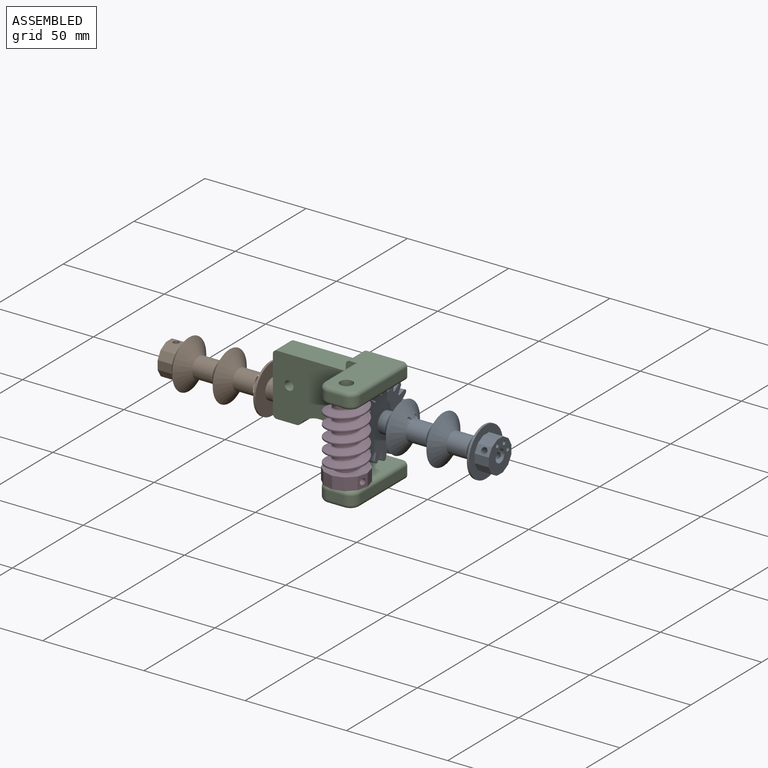
[diagram: assembled view]
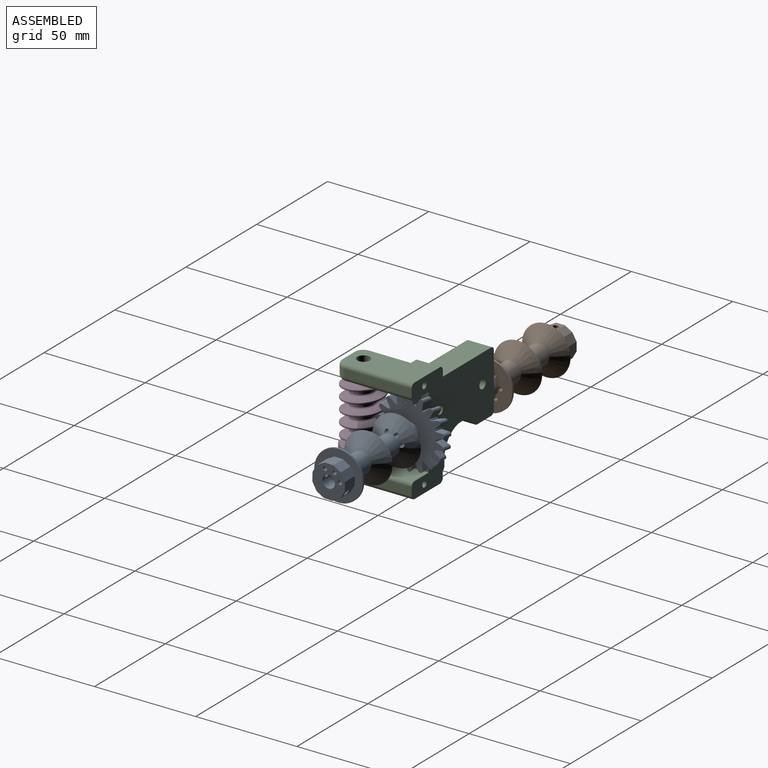
[diagram: assembled view, second angle]
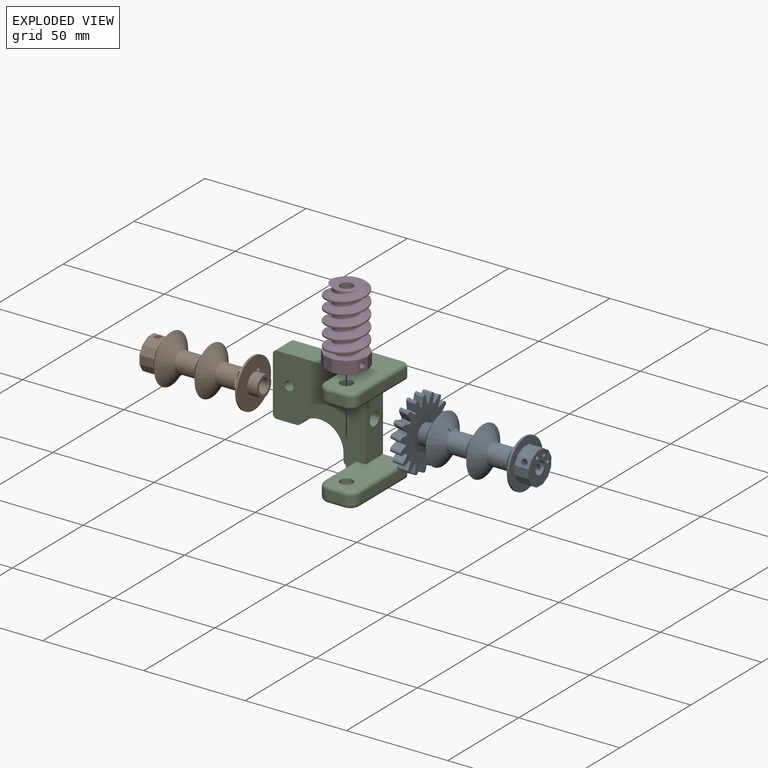
[diagram: exploded view]
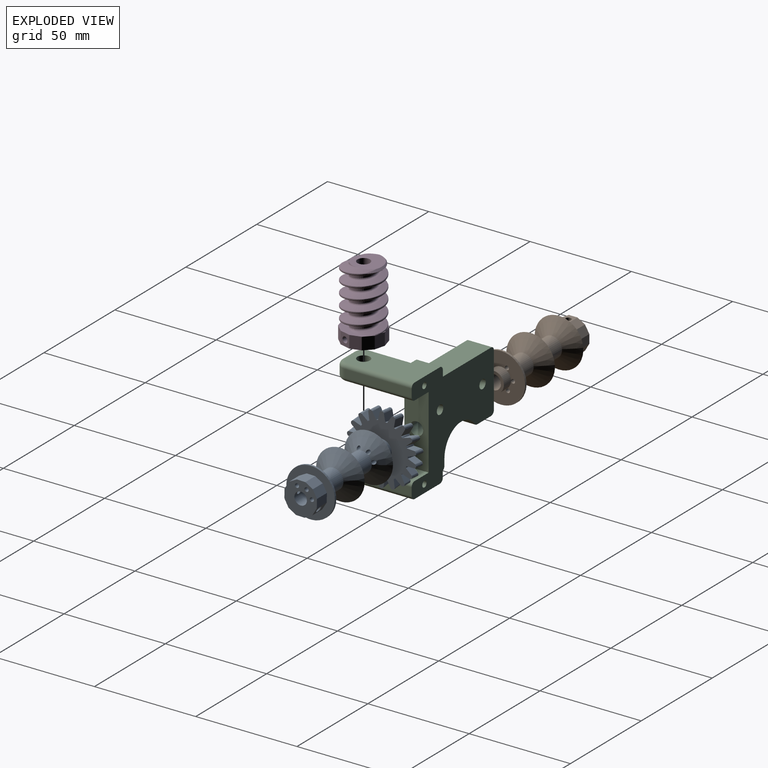
[diagram: exploded view, second angle]
ASSEMBLY  parts=4 mates=3
PART A: 187 faces, bbox 34.6x34.7x62.4 mm
  f0: plane 4.47x0.66mm, normal (0,1,0), area 1.5mm2, adj f2,f6,f11
  f1: plane 5x0.97mm, normal (0,1,0), area 3mm2, adj f2,f3,f7,f138,f140
  f2: plane 34.67x34.33mm, normal (0,0,1), area 655.4mm2, adj f0,f1,f5,f6,f7,f8,f9,f10
  f3: plane 34.67x34.44mm, normal (0,0,-1), area 703.8mm2, adj f1,f4,f5,f6,f7,f8,f9,f11
  f4: plane 0.53x0.08mm, normal (0,-1,0), area 0mm2, adj f3,f6,f11
  f5: plane 5x1.06mm, normal (0,1,0), area 1.6mm2, adj f2,f3,f8,f9
  f6: plane 5x3.78mm, normal (0.97,0.2,0.14), area 19.5mm2, adj f0,f2,f3,f4,f9
  f7: plane 5x3.78mm, normal (-0.97,0.2,-0.14), area 19.5mm2, adj f1,f2,f3,f8
  f8: bspline ~5.77x1.69mm, area 6mm2, adj f2,f3,f5,f7
  f9: bspline ~5.77x1.69mm, area 6mm2, adj f2,f3,f5,f6
  f10: plane 4.47x0.62mm, normal (0.34,0.94,0), area 1.5mm2, adj f2,f14,f19
  f11: plane 5x0.91mm, normal (0.34,0.94,0), area 3mm2, adj f0,f2,f3,f4,f15
  f12: plane 0.53x0.07mm, normal (-0.34,-0.94,0), area 0mm2, adj f3,f14,f19
  f13: plane 5x1mm, normal (0.34,0.94,0), area 1.6mm2, adj f2,f3,f16,f17
  f14: plane 5x4.07mm, normal (0.98,-0.15,0.14), area 19.5mm2, adj f2,f3,f10,f12,f17
  f15: plane 5x3.55mm, normal (-0.84,0.52,-0.14), area 19.5mm2, adj f2,f3,f11,f16
  f16: bspline ~5.77x1.84mm, area 6mm2, adj f2,f3,f13,f15
  f17: bspline ~5.25x1.27mm, area 6mm2, adj f2,f3,f13,f14
  f18: plane 4.47x0.5mm, normal (0.64,0.77,0), area 1.5mm2, adj f2,f22,f27
  f19: plane 5x0.74mm, normal (0.64,0.77,0), area 3mm2, adj f2,f3,f10,f12,f23
  f20: plane 0.53x0.06mm, normal (-0.64,-0.77,0), area 0mm2, adj f3,f22,f27
  f21: plane 5x0.81mm, normal (0.64,0.77,0), area 1.6mm2, adj f2,f3,f24,f25
  f22: plane 5x3.86mm, normal (0.87,-0.47,0.14), area 19.5mm2, adj f2,f3,f18,f20,f25
  f23: plane 5x3.58mm, normal (-0.62,0.77,-0.14), area 19.5mm2, adj f2,f3,f19,f24
  f24: bspline ~5.25x1.7mm, area 6mm2, adj f2,f3,f21,f23
  f25: bspline ~5.25x1.59mm, area 6mm2, adj f2,f3,f21,f22
  f26: plane 4.47x0.57mm, normal (0.87,0.5,0), area 1.5mm2, adj f2,f30,f35
  f27: plane 5x0.84mm, normal (0.87,0.5,0), area 3mm2, adj f2,f3,f18,f20,f31
  f28: plane 0.53x0.07mm, normal (-0.87,-0.5,0), area 0mm2, adj f3,f30,f35
  f29: plane 5x0.92mm, normal (0.87,0.5,0), area 1.6mm2, adj f2,f3,f32,f33
  f30: plane 5x3.26mm, normal (0.65,-0.74,0.14), area 19.5mm2, adj f2,f3,f26,f28,f33
  f31: plane 5x4.03mm, normal (-0.32,0.94,-0.14), area 19.5mm2, adj f2,f3,f27,f32
  f32: bspline ~5.25x1.43mm, area 6mm2, adj f2,f3,f29,f31
  f33: bspline ~5.77x1.82mm, area 6mm2, adj f2,f3,f29,f30
  f34: plane 4.47x0.65mm, normal (0.98,0.17,0), area 1.5mm2, adj f2,f38,f43
  f35: plane 5x0.96mm, normal (0.98,0.17,0), area 3mm2, adj f2,f3,f26,f28,f39
  f36: plane 0.53x0.08mm, normal (-0.98,-0.17,0), area 0mm2, adj f3,f38,f43
  f37: plane 5x1.05mm, normal (0.98,0.17,0), area 1.6mm2, adj f2,f3,f40,f41
  f38: plane 5x3.72mm, normal (0.36,-0.92,0.14), area 19.5mm2, adj f2,f3,f34,f36,f41
  f39: plane 5x3.99mm, normal (0.02,0.99,-0.14), area 19.5mm2, adj f2,f3,f35,f40
  f40: bspline ~5.77x1.54mm, area 6mm2, adj f2,f3,f37,f39
  f41: bspline ~5.77x1.79mm, area 6mm2, adj f2,f3,f37,f38
  f42: plane 4.47x0.65mm, normal (0.98,-0.17,0), area 1.5mm2, adj f2,f46,f51
  f43: plane 5x0.96mm, normal (0.98,-0.17,0), area 3mm2, adj f2,f3,f34,f36,f47
  f44: plane 0.53x0.08mm, normal (-0.98,0.17,0), area 0mm2, adj f3,f46,f51
  f45: plane 5x1.05mm, normal (0.98,-0.17,0), area 1.6mm2, adj f2,f3,f48,f49
  f46: plane 5x3.99mm, normal (0.02,-0.99,0.14), area 19.5mm2, adj f2,f3,f42,f44,f49
  f47: plane 5x3.72mm, normal (0.36,0.92,-0.14), area 19.5mm2, adj f2,f3,f43,f48
  f48: bspline ~5.77x1.79mm, area 6mm2, adj f2,f3,f45,f47
  f49: bspline ~5.77x1.54mm, area 6mm2, adj f2,f3,f45,f46
  f50: plane 4.47x0.57mm, normal (0.87,-0.5,0), area 1.5mm2, adj f2,f54,f59
  f51: plane 5x0.84mm, normal (0.87,-0.5,0), area 3mm2, adj f2,f3,f42,f44,f55
  f52: plane 0.53x0.07mm, normal (-0.87,0.5,0), area 0mm2, adj f3,f54,f59
  f53: plane 5x0.92mm, normal (0.87,-0.5,0), area 1.6mm2, adj f2,f3,f56,f57
  f54: plane 5x4.03mm, normal (-0.32,-0.94,0.14), area 19.5mm2, adj f2,f3,f50,f52,f57
  f55: plane 5x3.26mm, normal (0.65,0.74,-0.14), area 19.5mm2, adj f2,f3,f51,f56
  f56: bspline ~5.77x1.82mm, area 6mm2, adj f2,f3,f53,f55
  f57: bspline ~5.77x1.47mm, area 6mm2, adj f2,f3,f53,f54
  f58: plane 4.47x0.5mm, normal (0.64,-0.77,0), area 1.5mm2, adj f2,f62,f67
  f59: plane 5x0.74mm, normal (0.64,-0.77,0), area 3mm2, adj f2,f3,f50,f52,f63
  f60: plane 0.53x0.06mm, normal (-0.64,0.77,0), area 0mm2, adj f3,f62,f67
  f61: plane 5x0.81mm, normal (0.64,-0.77,0), area 1.6mm2, adj f2,f3,f64,f65
  f62: plane 5x3.58mm, normal (-0.62,-0.77,0.14), area 19.5mm2, adj f2,f3,f58,f60,f65
  f63: plane 5x3.86mm, normal (0.87,0.47,-0.14), area 19.5mm2, adj f2,f3,f59,f64
  f64: bspline ~5.77x1.64mm, area 6mm2, adj f2,f3,f61,f63
  f65: bspline ~5.25x1.7mm, area 6mm2, adj f2,f3,f61,f62
  f66: plane 4.47x0.62mm, normal (0.34,-0.94,0), area 1.5mm2, adj f2,f70,f75
  f67: plane 5x0.91mm, normal (0.34,-0.94,0), area 3mm2, adj f2,f3,f58,f60,f71
  f68: plane 0.53x0.07mm, normal (-0.34,0.94,0), area 0mm2, adj f3,f70,f75
  f69: plane 5x1mm, normal (0.34,-0.94,0), area 1.6mm2, adj f2,f3,f72,f73
  f70: plane 5x3.55mm, normal (-0.84,-0.52,0.14), area 19.5mm2, adj f2,f3,f66,f68,f73
  f71: plane 5x4.07mm, normal (0.98,0.15,-0.14), area 19.5mm2, adj f2,f3,f67,f72
  f72: bspline ~5.25x1.27mm, area 6mm2, adj f2,f3,f69,f71
  f73: bspline ~5.77x1.84mm, area 6mm2, adj f2,f3,f69,f70
  f74: plane 4.47x0.66mm, normal (0,-1,0), area 1.5mm2, adj f2,f78,f83
  f75: plane 5x0.97mm, normal (0,-1,0), area 3mm2, adj f2,f3,f66,f68,f79
  f76: plane 0.53x0.08mm, normal (0,1,0), area 0mm2, adj f3,f78,f83
  f77: plane 5x1.06mm, normal (0,-1,0), area 1.6mm2, adj f2,f3,f80,f81
  f78: plane 5x3.78mm, normal (-0.97,-0.2,0.14), area 19.5mm2, adj f2,f3,f74,f76,f81
  f79: plane 5x3.78mm, normal (0.97,-0.2,-0.14), area 19.5mm2, adj f2,f3,f75,f80
  f80: bspline ~5.77x1.69mm, area 6mm2, adj f2,f3,f77,f79
  f81: bspline ~5.77x1.69mm, area 6mm2, adj f2,f3,f77,f78
  f82: plane 4.47x0.62mm, normal (-0.34,-0.94,0), area 1.5mm2, adj f2,f86,f91
  f83: plane 5x0.91mm, normal (-0.34,-0.94,0), area 3mm2, adj f2,f3,f74,f76,f87
  f84: plane 0.53x0.07mm, normal (0.34,0.94,0), area 0mm2, adj f3,f86,f91
  f85: plane 5x1mm, normal (-0.34,-0.94,0), area 1.6mm2, adj f2,f3,f88,f89
  f86: plane 5x4.07mm, normal (-0.98,0.15,0.14), area 19.5mm2, adj f2,f3,f82,f84,f89
  f87: plane 5x3.55mm, normal (0.84,-0.52,-0.14), area 19.5mm2, adj f2,f3,f83,f88
  f88: bspline ~5.77x1.84mm, area 6mm2, adj f2,f3,f85,f87
  f89: bspline ~5.25x1.27mm, area 6mm2, adj f2,f3,f85,f86
  f90: plane 4.47x0.5mm, normal (-0.64,-0.77,0), area 1.5mm2, adj f2,f94,f99
  f91: plane 5x0.74mm, normal (-0.64,-0.77,0), area 3mm2, adj f2,f3,f82,f84,f95
  f92: plane 0.53x0.06mm, normal (0.64,0.77,0), area 0mm2, adj f3,f94,f99
  f93: plane 5x0.81mm, normal (-0.64,-0.77,0), area 1.6mm2, adj f2,f3,f96,f97
  f94: plane 5x3.86mm, normal (-0.87,0.47,0.14), area 19.5mm2, adj f2,f3,f90,f92,f97
  f95: plane 5x3.58mm, normal (0.62,-0.77,-0.14), area 19.5mm2, adj f2,f3,f91,f96
  f96: bspline ~5.25x1.7mm, area 6mm2, adj f2,f3,f93,f95
  f97: bspline ~5.25x1.59mm, area 6mm2, adj f2,f3,f93,f94
  f98: plane 4.47x0.57mm, normal (-0.87,-0.5,0), area 1.5mm2, adj f2,f102,f107
  f99: plane 5x0.84mm, normal (-0.87,-0.5,0), area 3mm2, adj f2,f3,f90,f92,f103
  f100: plane 0.53x0.07mm, normal (0.87,0.5,0), area 0mm2, adj f3,f102,f107
  f101: plane 5x0.92mm, normal (-0.87,-0.5,0), area 1.6mm2, adj f2,f3,f104,f105
  f102: plane 5x3.26mm, normal (-0.65,0.74,0.14), area 19.5mm2, adj f2,f3,f98,f100,f105
  f103: plane 5x4.03mm, normal (0.32,-0.94,-0.14), area 19.5mm2, adj f2,f3,f99,f104
  f104: bspline ~5.25x1.43mm, area 6mm2, adj f2,f3,f101,f103
  f105: bspline ~5.77x1.82mm, area 6mm2, adj f2,f3,f101,f102
  f106: plane 4.47x0.65mm, normal (-0.98,-0.17,0), area 1.5mm2, adj f2,f110,f115
  f107: plane 5x0.96mm, normal (-0.98,-0.17,0), area 3mm2, adj f2,f3,f98,f100,f111
  f108: plane 0.53x0.08mm, normal (0.98,0.17,0), area 0mm2, adj f3,f110,f115
  f109: plane 5x1.05mm, normal (-0.98,-0.17,0), area 1.6mm2, adj f2,f3,f112,f113
  f110: plane 5x3.72mm, normal (-0.36,0.92,0.14), area 19.5mm2, adj f2,f3,f106,f108,f113
  f111: plane 5x3.99mm, normal (-0.02,-0.99,-0.14), area 19.5mm2, adj f2,f3,f107,f112
  f112: bspline ~5.77x1.54mm, area 6mm2, adj f2,f3,f109,f111
  f113: bspline ~5.77x1.79mm, area 6mm2, adj f2,f3,f109,f110
  f114: plane 4.47x0.65mm, normal (-0.98,0.17,0), area 1.5mm2, adj f2,f118,f123
  f115: plane 5x0.96mm, normal (-0.98,0.17,0), area 3mm2, adj f2,f3,f106,f108,f119
  f116: plane 0.53x0.08mm, normal (0.98,-0.17,0), area 0mm2, adj f3,f118,f123
  f117: plane 5x1.05mm, normal (-0.98,0.17,0), area 1.6mm2, adj f2,f3,f120,f121
  f118: plane 5x3.99mm, normal (-0.02,0.99,0.14), area 19.5mm2, adj f2,f3,f114,f116,f121
  f119: plane 5x3.72mm, normal (-0.36,-0.92,-0.14), area 19.5mm2, adj f2,f3,f115,f120
  f120: bspline ~5.77x1.79mm, area 6mm2, adj f2,f3,f117,f119
  f121: bspline ~5.77x1.54mm, area 6mm2, adj f2,f3,f117,f118
  f122: plane 4.47x0.57mm, normal (-0.87,0.5,0), area 1.5mm2, adj f2,f126,f131
  f123: plane 5x0.84mm, normal (-0.87,0.5,0), area 3mm2, adj f2,f3,f114,f116,f127
  f124: plane 0.53x0.07mm, normal (0.87,-0.5,0), area 0mm2, adj f3,f126,f131
  f125: plane 5x0.92mm, normal (-0.87,0.5,0), area 1.6mm2, adj f2,f3,f128,f129
  f126: plane 5x4.03mm, normal (0.32,0.94,0.14), area 19.5mm2, adj f2,f3,f122,f124,f129
  f127: plane 5x3.26mm, normal (-0.65,-0.74,-0.14), area 19.5mm2, adj f2,f3,f123,f128
  f128: bspline ~5.77x1.82mm, area 6mm2, adj f2,f3,f125,f127
  f129: bspline ~5.77x1.47mm, area 6mm2, adj f2,f3,f125,f126
  f130: plane 4.47x0.5mm, normal (-0.64,0.77,0), area 1.5mm2, adj f2,f134,f139
  f131: plane 5x0.74mm, normal (-0.64,0.77,0), area 3mm2, adj f2,f3,f122,f124,f135
  f132: plane 0.53x0.06mm, normal (0.64,-0.77,0), area 0mm2, adj f3,f134,f139
  f133: plane 5x0.81mm, normal (-0.64,0.77,0), area 1.6mm2, adj f2,f3,f136,f137
  f134: plane 5x3.58mm, normal (0.62,0.77,0.14), area 19.5mm2, adj f2,f3,f130,f132,f137
  f135: plane 5x3.86mm, normal (-0.87,-0.47,-0.14), area 19.5mm2, adj f2,f3,f131,f136
  f136: bspline ~5.77x1.64mm, area 6mm2, adj f2,f3,f133,f135
  f137: bspline ~5.25x1.7mm, area 6mm2, adj f2,f3,f133,f134
  f138: plane 4.47x0.62mm, normal (-0.34,0.94,0), area 1.5mm2, adj f1,f2,f142
  f139: plane 5x0.91mm, normal (-0.34,0.94,0), area 3mm2, adj f2,f3,f130,f132,f143
  f140: plane 0.53x0.07mm, normal (0.34,-0.94,0), area 0mm2, adj f1,f3,f142
  f141: plane 5x1mm, normal (-0.34,0.94,0), area 1.6mm2, adj f2,f3,f144,f145
  f142: plane 5x3.55mm, normal (0.84,0.52,0.14), area 19.5mm2, adj f2,f3,f138,f140,f145
  f143: plane 5x4.07mm, normal (-0.98,-0.15,-0.14), area 19.5mm2, adj f2,f3,f139,f144
  f144: bspline ~5.25x1.27mm, area 6mm2, adj f2,f3,f141,f143
  f145: bspline ~5.77x1.84mm, area 6mm2, adj f2,f3,f141,f142
  f146: cylinder r=3.1mm len=62mm, axis (0,0,1), area 1193mm2, adj f3,f169,f170,f171
  f147: cylinder r=5mm len=10mm, axis (0,0,-1), area 125.7mm2, adj f2,f148,f180,f183,f186
  f148: cone r=12mm half-angle=54.5deg, axis (0,0,1), area 449.4mm2, adj f147,f149,f179,f182,f185
  f149: cone r=5mm half-angle=54.5deg, axis (0,0,-1), area 449.4mm2, adj f148,f150,f179,f182,f185
  f150: cylinder r=5mm len=10mm, axis (0,0,-1), area 314.2mm2, adj f149,f151,f178,f181,f184
  f151: cone r=12mm half-angle=54.5deg, axis (0,0,1), area 459.4mm2, adj f150,f152
  f152: cone r=5mm half-angle=54.5deg, axis (0,0,-1), area 459.4mm2, adj f151,f153
  f153: cylinder r=5mm len=10mm, axis (0,0,-1), area 314.2mm2, adj f152,f156,f173,f175,f177
  f154: cylinder r=12mm len=24mm, axis (0,0,-1), area 75.4mm2, adj f155,f156
  f155: plane 24x24mm, normal (0,0,1), area 246.6mm2, adj f154,f157,f158,f159,f160,f161,f162,f163
  f156: cone r=12mm half-angle=54.5deg, axis (0,0,1), area 449.4mm2, adj f153,f154,f172,f174,f176
  f157: plane 7x3.71mm, normal (-0.5,-0.87,0), area 30mm2, adj f155,f158,f168,f169
  f158: plane 7x4.29mm, normal (0,-1,0), area 22.9mm2, adj f155,f157,f159,f169,f171
  f159: plane 7x3.71mm, normal (0.5,-0.87,0), area 30mm2, adj f155,f158,f160,f169
  f160: plane 7x3.71mm, normal (0.87,-0.5,0), area 30mm2, adj f155,f159,f161,f169
  f161: plane 7x4.29mm, normal (1,0,0), area 30mm2, adj f155,f160,f162,f169
  f162: plane 7x3.71mm, normal (0.87,0.5,0), area 30mm2, adj f155,f161,f163,f169
  f163: plane 7x3.71mm, normal (0.5,0.87,0), area 30mm2, adj f155,f162,f164,f169
  f164: plane 7x4.29mm, normal (0,1,0), area 22.9mm2, adj f155,f163,f165,f169,f170
  f165: plane 7x3.71mm, normal (-0.5,0.87,0), area 30mm2, adj f155,f164,f166,f169
  f166: plane 7x3.71mm, normal (-0.87,0.5,0), area 30mm2, adj f155,f165,f167,f169
  f167: plane 7x4.29mm, normal (-1,0,0), area 30mm2, adj f155,f166,f168,f169
  f168: plane 7x3.71mm, normal (-0.87,-0.5,0), area 30mm2, adj f155,f157,f167,f169
  f169: plane 16x16mm, normal (0,0,1), area 166.2mm2, adj f146,f157,f158,f159,f160,f161,f162,f163
  f170: cylinder r=1.5mm len=4.9mm, axis (0,-1,0), area 46.2mm2, adj f146,f164
  f171: cylinder r=1.5mm len=4.9mm, axis (0,-1,0), area 46.2mm2, adj f146,f158
  f172: cylinder r=1mm len=13mm, axis (0,0,1), area 78.5mm2, adj f156,f169,f173
  f173: plane 1.16x0.98mm, normal (0,0,1), area 0.4mm2, adj f153,f172
  f174: cylinder r=1mm len=13mm, axis (0,0,1), area 78.5mm2, adj f156,f169,f175
  f175: plane 1.51x0.4mm, normal (0,0,1), area 0.4mm2, adj f153,f174
  f176: cylinder r=1mm len=13mm, axis (0,0,1), area 78.5mm2, adj f156,f169,f177
  f177: plane 1.13x1.01mm, normal (0,0,1), area 0.4mm2, adj f153,f176
  f178: plane 1.16x0.98mm, normal (0,0,-1), area 0.4mm2, adj f150,f179
  f179: cylinder r=1mm len=10mm, axis (0,0,1), area 56.4mm2, adj f148,f149,f178,f180
  f180: plane 1.16x0.98mm, normal (0,0,1), area 0.4mm2, adj f147,f179
  f181: plane 1.51x0.4mm, normal (0,0,-1), area 0.4mm2, adj f150,f182
  f182: cylinder r=1mm len=10mm, axis (0,0,1), area 57.9mm2, adj f148,f149,f181,f183
  f183: plane 1.51x0.4mm, normal (0,0,1), area 0.4mm2, adj f147,f182
  f184: plane 1.13x1.01mm, normal (0,0,-1), area 0.4mm2, adj f150,f185
  f185: cylinder r=1mm len=10mm, axis (0,0,1), area 56.4mm2, adj f148,f149,f184,f186
  f186: plane 1.13x1.01mm, normal (0,0,1), area 0.4mm2, adj f147,f185
PART B: 38 faces, bbox 24x24x56 mm
  f0: cylinder r=3.1mm len=55mm, axis (0,0,-1), area 1056.7mm2, adj f6,f25,f26,f37
  f1: cylinder r=12mm len=24mm, axis (0,0,-1), area 75.4mm2, adj f2,f3
  f2: plane 24x24mm, normal (0,0,-1), area 364.4mm2, adj f1,f4,f33,f34,f35
  f3: cone r=5mm half-angle=54.5deg, axis (0,0,-1), area 447.8mm2, adj f1,f7,f33,f34,f35
  f4: cylinder r=5mm len=10mm, axis (0,0,1), area 157.1mm2, adj f2,f5
  f5: plane 10x10mm, normal (0,0,-1), area 37.8mm2, adj f4,f6
  f6: cone r=3.6mm half-angle=45deg, axis (0,0,-1), area 14.9mm2, adj f0,f5
  f7: cylinder r=5mm len=10mm, axis (0,0,-1), area 314.2mm2, adj f3,f10
  f8: cylinder r=5mm len=10mm, axis (0,0,-1), area 314.2mm2, adj f9,f11
  f9: cone r=12mm half-angle=54.5deg, axis (0,0,1), area 459.4mm2, adj f8,f36
  f10: cone r=12mm half-angle=54.5deg, axis (0,0,1), area 459.4mm2, adj f7,f11
  f11: cone r=5mm half-angle=54.5deg, axis (0,0,-1), area 459.4mm2, adj f8,f10
  f12: plane 7.21x3.71mm, normal (-0.87,0.5,0), area 30.3mm2, adj f13,f23,f24,f36
  f13: plane 7.21x4.29mm, normal (-1,0,0), area 23.2mm2, adj f12,f14,f24,f26,f36
  f14: plane 7.21x3.71mm, normal (-0.87,-0.5,0), area 30.3mm2, adj f13,f15,f24,f36
  f15: plane 7.21x3.71mm, normal (-0.5,-0.87,0), area 30.3mm2, adj f14,f16,f24,f36
  f16: plane 7.21x4.29mm, normal (0,-1,0), area 30.3mm2, adj f15,f17,f24,f36
  f17: plane 7.21x3.71mm, normal (0.5,-0.87,0), area 30.3mm2, adj f16,f18,f24,f36
  f18: plane 7.21x3.71mm, normal (0.87,-0.5,0), area 30.3mm2, adj f17,f19,f24,f36
  f19: plane 7.21x4.29mm, normal (1,0,0), area 23.2mm2, adj f18,f20,f24,f25,f36
  f20: plane 7.21x3.71mm, normal (0.87,0.5,0), area 30.3mm2, adj f19,f21,f24,f36
  f21: plane 7.21x3.71mm, normal (0.5,0.87,0), area 30.3mm2, adj f20,f22,f24,f36
  f22: plane 7.21x4.29mm, normal (0,1,0), area 30.3mm2, adj f21,f23,f24,f36
  f23: plane 7.21x3.71mm, normal (-0.5,0.87,0), area 30.3mm2, adj f12,f22,f24,f36
  f24: plane 16x16mm, normal (0,0,1), area 155.6mm2, adj f12,f13,f14,f15,f16,f17,f18,f19
  f25: cylinder r=1.5mm len=5.29mm, axis (-1,0,0), area 48mm2, adj f0,f19
  f26: cylinder r=1.5mm len=5.29mm, axis (-1,0,0), area 48mm2, adj f0,f13
  f27: cylinder r=1mm len=13mm, axis (0,0,1), area 81.7mm2, adj f24,f28
  f28: plane 2x2mm, normal (0,0,1), area 3.1mm2, adj f27
  f29: cylinder r=1mm len=13mm, axis (0,0,1), area 81.7mm2, adj f24,f30
  f30: plane 2x2mm, normal (0,0,1), area 3.1mm2, adj f29
  f31: cylinder r=1mm len=13mm, axis (0,0,1), area 81.7mm2, adj f24,f32
  f32: plane 2x2mm, normal (0,0,1), area 3.1mm2, adj f31
  f33: cylinder r=1mm len=6mm, axis (0,0,1), area 33mm2, adj f2,f3
  f34: cylinder r=1mm len=6mm, axis (0,0,1), area 33mm2, adj f2,f3
  f35: cylinder r=1mm len=6mm, axis (0,0,1), area 33mm2, adj f2,f3
  f36: cone r=8mm half-angle=53.1deg, axis (0,0,-1), area 308.3mm2, adj f9,f12,f13,f14,f15,f16,f17,f18
  f37: cone r=3.1mm half-angle=45deg, axis (0,0,1), area 14.9mm2, adj f0,f24
PART C: 59 faces, bbox 58.4x38.4x52 mm
  f0: plane 36x12mm, normal (1,0,0), area 398.8mm2, adj f2,f9,f10,f16,f23
  f1: plane 34x12mm, normal (0,0,1), area 408mm2, adj f2,f9,f22,f52
  f2: plane 52x46mm, normal (0,-1,0), area 1428.3mm2, adj f0,f1,f3,f4,f5,f6,f7,f8
  f3: cylinder r=11.9mm len=21.41mm, axis (0,1,0), area 356.5mm2, adj f2,f4,f9,f51
  f4: plane 12x3.28mm, normal (-1,0,0), area 39.4mm2, adj f2,f3,f9,f54
  f5: plane 26.54x12mm, normal (-1,0,0), area 285.3mm2, adj f2,f9,f10,f52,f53
  f6: cylinder r=2.25mm len=12mm, axis (0,1,0), area 169.6mm2, adj f2,f9
  f7: plane 12x9.9mm, normal (0,0,-1), area 118.7mm2, adj f2,f9,f51,f53
  f8: cylinder r=2.25mm len=12mm, axis (0,1,0), area 169.6mm2, adj f2,f9
  f9: plane 58x52mm, normal (0,1,0), area 1695.3mm2, adj f0,f1,f3,f4,f5,f6,f7,f8
  f10: cylinder r=3.25mm len=46mm, axis (1,0,0), area 939.3mm2, adj f0,f5
  f11: plane 21x4mm, normal (-1,0,0), area 84mm2, adj f2,f28,f43,f48
  f12: plane 12x3mm, normal (-1,0,0), area 36mm2, adj f2,f9,f50,f54
  f13: plane 33x4mm, normal (1,0,0), area 132mm2, adj f9,f27,f39,f44
  f14: plane 8x4mm, normal (0,-1,0), area 32mm2, adj f27,f28,f41,f46
  f15: cylinder r=3.1mm len=8mm, axis (0,0,-1), area 155.8mm2, adj f16,f17
  f16: plane 36x14mm, normal (0,0,1), area 421.9mm2, adj f0,f2,f9,f15,f44,f45,f46,f47
  f17: plane 36x17.94mm, normal (0,0,-1), area 517.2mm2, adj f2,f9,f15,f39,f40,f41,f42,f43
  f18: plane 21x4mm, normal (-1,0,0), area 84mm2, adj f2,f25,f33,f38
  f19: plane 8x4mm, normal (0,-1,0), area 32mm2, adj f25,f26,f31,f36
  f20: plane 33x4mm, normal (1,0,0), area 132mm2, adj f9,f26,f29,f34
  f21: cylinder r=3.1mm len=8mm, axis (0,0,1), area 155.8mm2, adj f23,f24
  f22: plane 12x3mm, normal (-1,0,0), area 36mm2, adj f1,f2,f9,f49
  f23: plane 36x14mm, normal (0,0,-1), area 421.9mm2, adj f0,f2,f9,f21,f34,f35,f36,f37
  f24: plane 36x18mm, normal (0,0,1), area 517.9mm2, adj f2,f9,f21,f29,f30,f31,f32,f33
  f25: cylinder r=5mm len=5mm, axis (0,0,1), area 31.4mm2, adj f18,f19,f32,f37
  f26: cylinder r=5mm len=5mm, axis (0,0,-1), area 31.4mm2, adj f19,f20,f30,f35
  f27: cylinder r=5mm len=5mm, axis (0,0,1), area 31.4mm2, adj f13,f14,f40,f45
  f28: cylinder r=5mm len=5mm, axis (0,0,-1), area 31.4mm2, adj f11,f14,f42,f47
  f29: cylinder r=2mm len=33mm, axis (0,1,0), area 103.7mm2, adj f9,f20,f24,f30
  f30: torus R=3mm, axis (0,0,1), area 21.1mm2, adj f24,f26,f29,f31
  f31: cylinder r=2mm len=8mm, axis (1,0,0), area 25.1mm2, adj f19,f24,f30,f32
  f32: torus R=3mm, axis (0,0,1), area 21.1mm2, adj f24,f25,f31,f33
  f33: cylinder r=2mm len=21mm, axis (0,-1,0), area 66mm2, adj f2,f18,f24,f32
  f34: cylinder r=2mm len=33mm, axis (0,-1,0), area 103.7mm2, adj f9,f20,f23,f35
  f35: torus R=3mm, axis (0,0,1), area 21.1mm2, adj f23,f26,f34,f36
  f36: cylinder r=2mm len=8mm, axis (-1,0,0), area 25.1mm2, adj f19,f23,f35,f37
  f37: torus R=3mm, axis (0,0,1), area 21.1mm2, adj f23,f25,f36,f38
  f38: cylinder r=2mm len=21mm, axis (0,1,0), area 66mm2, adj f2,f18,f23,f37
  f39: cylinder r=2mm len=33mm, axis (0,-1,0), area 103.7mm2, adj f9,f13,f17,f40
  f40: torus R=3mm, axis (0,0,-1), area 21.1mm2, adj f17,f27,f39,f41
  f41: cylinder r=2mm len=8mm, axis (-1,0,0), area 25.1mm2, adj f14,f17,f40,f42
  f42: torus R=3mm, axis (0,0,-1), area 21.1mm2, adj f17,f28,f41,f43
  f43: cylinder r=2mm len=21mm, axis (0,1,0), area 66mm2, adj f2,f11,f17,f42
  f44: cylinder r=2mm len=33mm, axis (0,1,0), area 103.7mm2, adj f9,f13,f16,f45
  f45: torus R=3mm, axis (0,0,-1), area 21.1mm2, adj f16,f27,f44,f46
  f46: cylinder r=2mm len=8mm, axis (1,0,0), area 25.1mm2, adj f14,f16,f45,f47
  f47: torus R=3mm, axis (0,0,-1), area 21.1mm2, adj f16,f28,f46,f48
  f48: cylinder r=2mm len=21mm, axis (0,-1,0), area 66mm2, adj f2,f11,f16,f47
  f49: cylinder r=2mm len=12mm, axis (0,-1,0), area 37.7mm2, adj f2,f9,f22,f24
  f50: cylinder r=2mm len=12mm, axis (0,1,0), area 37.7mm2, adj f2,f9,f12,f17
  f51: cylinder r=2mm len=12mm, axis (0,1,0), area 22.2mm2, adj f2,f3,f7,f9
  f52: cylinder r=2mm len=12mm, axis (0,1,0), area 37.7mm2, adj f1,f2,f5,f9
  f53: cylinder r=2mm len=12mm, axis (0,1,0), area 37.7mm2, adj f2,f5,f7,f9
  f54: cylinder r=2mm len=12mm, axis (0,1,0), area 27.3mm2, adj f2,f4,f9,f12
  f55: cylinder r=1.5mm len=24mm, axis (0,1,0), area 226.2mm2, adj f9,f57
  f56: cylinder r=1.5mm len=24mm, axis (0,1,0), area 226.2mm2, adj f9,f58
  f57: cone r=1.5mm half-angle=56.3deg, axis (0,1,0), area 8.5mm2, adj f55
  f58: cone r=1.5mm half-angle=56.3deg, axis (0,1,0), area 8.5mm2, adj f56
PART D: 35 faces, bbox 20.8x37.1x23.7 mm
  f0: plane 5.36x2.03mm, normal (0,0,1), area 3.5mm2, adj f23,f25,f27,f31
  f1: cylinder r=1.5mm len=4.3mm, axis (0,0,1), area 40.4mm2, adj f28,f34
  f2: bspline ~28.95x20.11mm, area 154.1mm2, adj f3,f8,f13,f14,f15
  f3: cylinder r=10mm len=27.9mm, axis (0,1,0), area -297.6mm2, adj f2,f9,f13,f14,f15
  f4: cylinder r=6mm len=28.9mm, axis (0,1,0), area 181.7mm2, adj f10,f11,f12,f14
  f5: bspline ~31.22x23.09mm, area 109.5mm2, adj f8,f11,f12,f14
  f6: bspline ~31.22x23.09mm, area 109.5mm2, adj f7,f10,f12,f14
  f7: bspline ~31.32x20.09mm, area 757.9mm2, adj f6,f9,f12,f13,f14
  f8: bspline ~31.23x20.11mm, area 757.6mm2, adj f2,f5,f12,f13,f14
  f9: bspline ~29.35x20.08mm, area 154.4mm2, adj f3,f7,f13,f14
  f10: bspline ~30.58x13.24mm, area 213.6mm2, adj f4,f6,f12,f14
  f11: bspline ~30.53x13.23mm, area 213.4mm2, adj f4,f5,f12,f14
  f12: plane 15.4x15.39mm, normal (0,1,0), area 146.8mm2, adj f4,f5,f6,f7,f8,f10,f11,f13
  f13: cone r=10mm half-angle=45deg, axis (0,-1,0), area 17mm2, adj f2,f3,f7,f8,f9,f12
  f14: plane 20.67x20.67mm, normal (0,1,0), area 132.2mm2, adj f2,f3,f4,f5,f6,f7,f8,f9
  f15: plane 6.11x5.37mm, normal (-1,0,0), area 32.7mm2, adj f2,f3,f14,f16,f26,f27
  f16: plane 6.1x4.63mm, normal (-0.86,0,-0.5), area 32.7mm2, adj f14,f15,f17,f27
  f17: plane 6.1x4.65mm, normal (-0.5,0,-0.87), area 32.7mm2, adj f14,f16,f18,f27
  f18: plane 6.1x5.36mm, normal (0,0,-1), area 25.6mm2, adj f14,f17,f19,f27,f29
  f19: plane 6.1x4.63mm, normal (0.5,0,-0.86), area 32.7mm2, adj f14,f18,f20,f27
  f20: plane 6.1x4.65mm, normal (0.87,0,-0.5), area 32.7mm2, adj f14,f19,f21,f27
  f21: plane 6.1x5.36mm, normal (1,0,0), area 32.7mm2, adj f14,f20,f22,f27
  f22: plane 6.1x4.63mm, normal (0.86,0,0.5), area 32.7mm2, adj f14,f21,f23,f27
  f23: plane 6.1x4.65mm, normal (0.5,0,0.87), area 32.7mm2, adj f0,f14,f22,f24,f27,f32
  f24: plane 5.36x2.13mm, normal (0,0,1), area 4.1mm2, adj f14,f23,f25,f33
  f25: plane 6.1x4.63mm, normal (-0.5,0,0.86), area 32.7mm2, adj f0,f14,f24,f26,f27,f30
  f26: plane 6.1x4.65mm, normal (-0.87,0,0.5), area 32.7mm2, adj f14,f15,f25,f27
  f27: plane 20.02x20.02mm, normal (0,-1,0), area 291.3mm2, adj f0,f15,f16,f17,f18,f19,f20,f21
  f28: cylinder r=3.1mm len=35mm, axis (0,-1,0), area 668.5mm2, adj f1,f12,f27,f29
  f29: cylinder r=1.5mm len=7.3mm, axis (0,0,1), area 65.9mm2, adj f18,f28
  f30: plane 3x1.94mm, normal (1,0,0), area 5.8mm2, adj f25,f31,f33,f34
  f31: cylinder r=2.85mm len=5.37mm, axis (0,0,1), area 20.9mm2, adj f0,f30,f32,f34
  f32: plane 3x1.94mm, normal (-1,0,0), area 5.8mm2, adj f23,f31,f33,f34
  f33: cylinder r=2.85mm len=5.37mm, axis (0,0,1), area 20.9mm2, adj f24,f30,f32,f34
  f34: plane 5.7x5.36mm, normal (0,0,1), area 18mm2, adj f1,f30,f31,f32,f33
PLACE A rot(axis=(-0.26,0.93,-0.26),94.1deg) t=(23.49,0.46,-0.72)mm
PLACE B rot(axis=(0,-1,0),90deg) t=(-27.01,0.46,-0.72)mm
PLACE C t=(0.49,6.46,-16.63)mm fixed
PLACE D rot(axis=(0.48,-0.62,-0.62),128.4deg) t=(26.49,-23.54,16.77)mm
MATE fastened B.f0 <-> C.f10  axis (1,0,0) through (-22.51,0.46,-0.72)mm
MATE revolute C.f10 <-> A.f146  axis (1,0,0) through (23.49,0.46,-0.72)mm
MATE revolute C.f15 <-> D.f28  axis (0,0,-1) through (26.49,-23.54,17.27)mm
